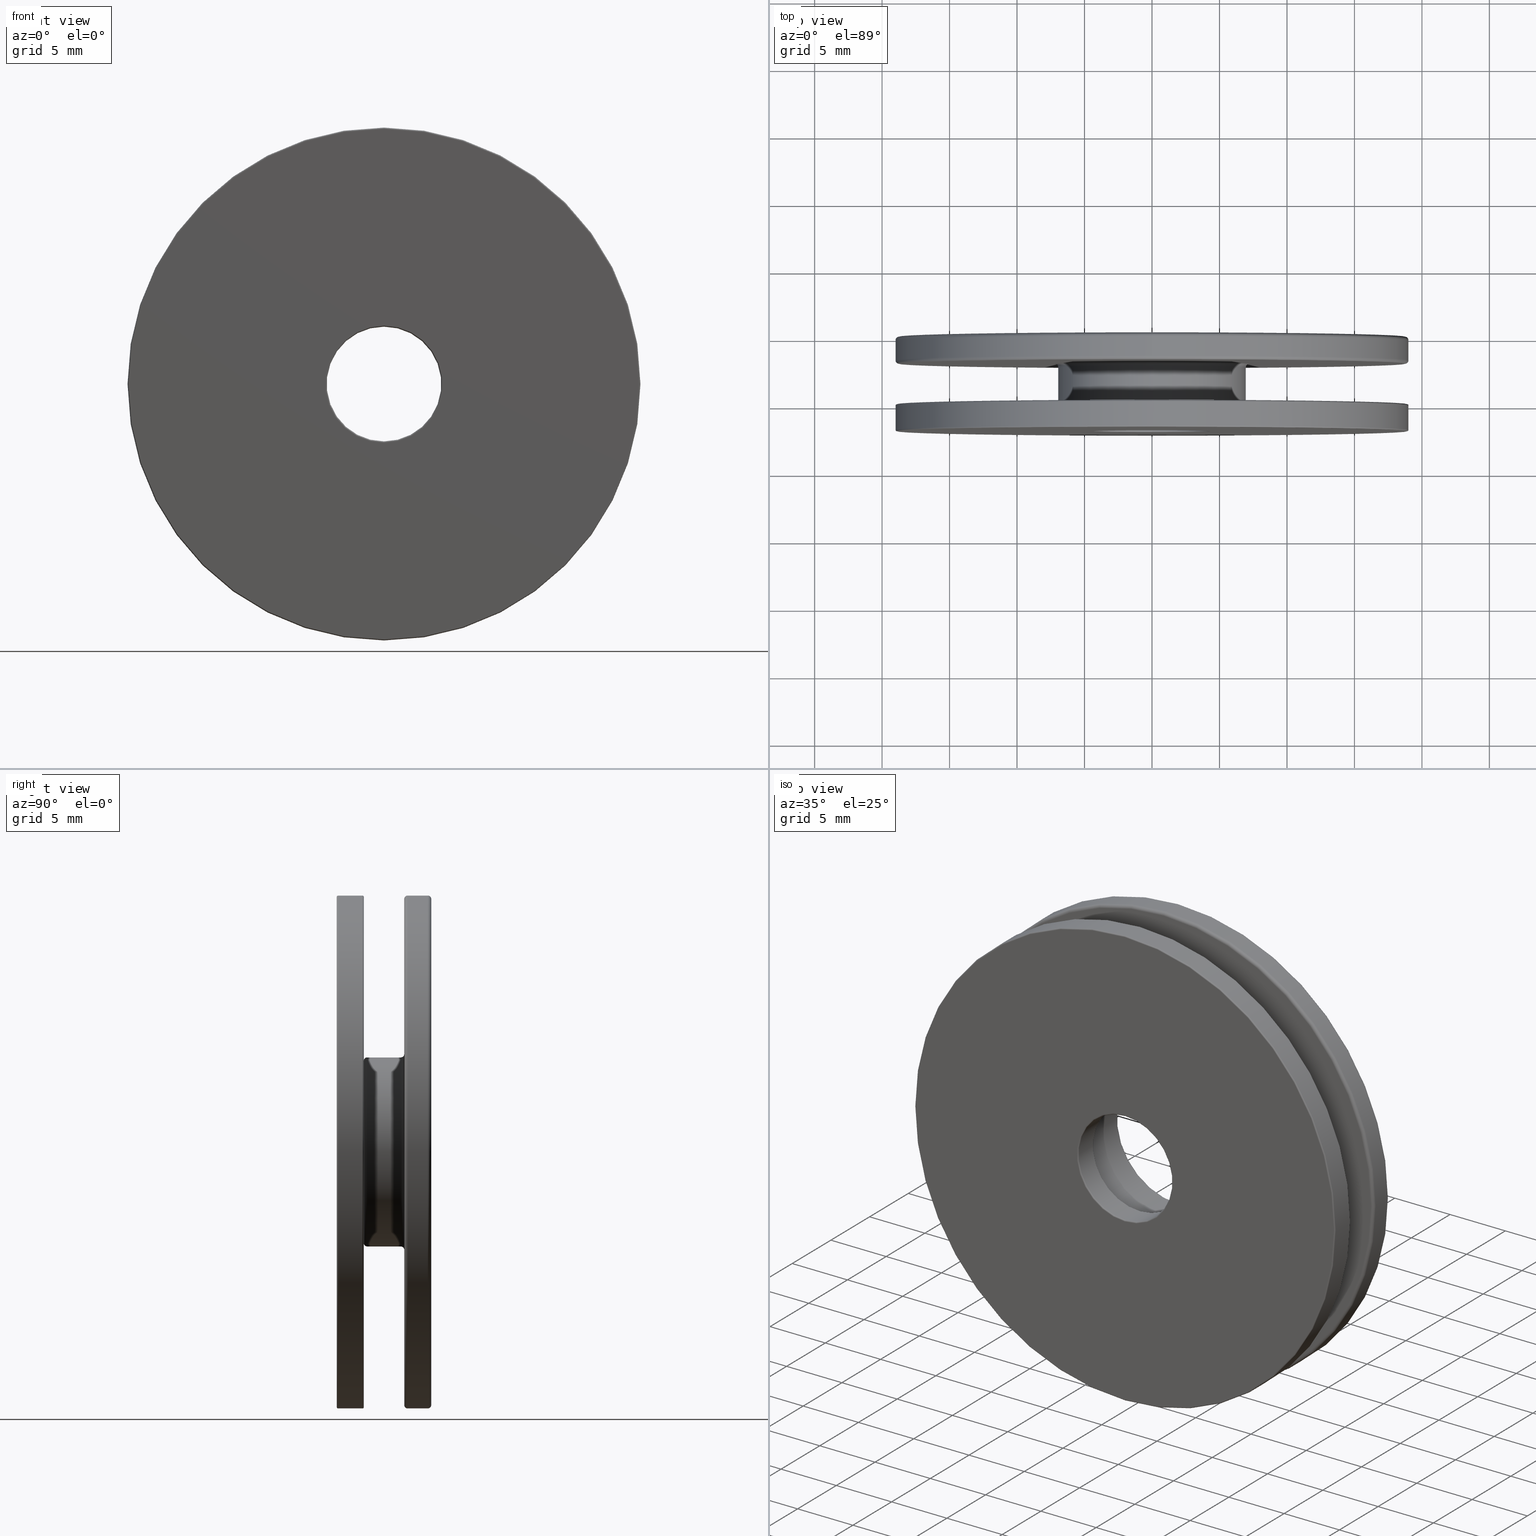
[diagram: canonical four-view strip — front | top / right | iso, engineering-drawing reading convention]
A machine part, canonical four-view strip (front | top / right | iso — engineering-drawing reading convention). The complete STEP part file that produces these views, byte-faithful:
ISO-10303-21;
HEADER;
FILE_DESCRIPTION (( 'STEP AP203' ),
    '1' );
FILE_NAME ('60230-GU.STEP',
    '2022-11-03T08:44:09',
    ( '' ),
    ( '' ),
    'SwSTEP 2.0',
    'SolidWorks 2018',
    '' );
FILE_SCHEMA (( 'CONFIG_CONTROL_DESIGN' ));
ENDSEC;

DATA;
#1 = CARTESIAN_POINT ( 'NONE',  ( 0.000000000000000000, 4.750000000000000000, 0.000000000000000000 ) ) ;
#2 = AXIS2_PLACEMENT_3D ( 'NONE', #224, #451, #333 ) ;
#3 = COORDINATED_UNIVERSAL_TIME_OFFSET ( 1, 0, .AHEAD. ) ;
#4 = DIRECTION ( 'NONE',  ( -0.000000000000000000, -1.000000000000000000, -0.000000000000000000 ) ) ;
#5 = CALENDAR_DATE ( 2022, 3, 11 ) ;
#6 = FACE_OUTER_BOUND ( 'NONE', #582, .T. ) ;
#7 = DIRECTION ( 'NONE',  ( 0.000000000000000000, 1.000000000000000000, 0.000000000000000000 ) ) ;
#8 = APPROVAL ( #378, 'UNSPECIFIED' ) ;
#9 = DIRECTION ( 'NONE',  ( 0.000000000000000000, 0.000000000000000000, 1.000000000000000000 ) ) ;
#10 = ADVANCED_FACE ( 'NONE', ( #263, #351 ), #678, .T. ) ;
#11 = DATE_AND_TIME ( #586, #401 ) ;
#12 = COORDINATED_UNIVERSAL_TIME_OFFSET ( 1, 0, .AHEAD. ) ;
#13 = APPROVAL_PERSON_ORGANIZATION ( #234, #353, #142 ) ;
#14 = DIRECTION ( 'NONE',  ( -0.000000000000000000, -1.000000000000000000, -0.000000000000000000 ) ) ;
#15 = CIRCLE ( 'NONE', #484, 4.250000000000000000 ) ;
#16 = ORIENTED_EDGE ( 'NONE', *, *, #312, .F. ) ;
#17 = AXIS2_PLACEMENT_3D ( 'NONE', #183, #639, #694 ) ;
#18 = CARTESIAN_POINT ( 'NONE',  ( 0.000000000000000000, 0.1000000000000002554, 0.000000000000000000 ) ) ;
#19 = PERSON ( 'UNSPECIFIED', 'UNSPECIFIED', 'UNSPECIFIED', ('UNSPECIFIED'), ('UNSPECIFIED'), ('UNSPECIFIED') ) ;
#20 = DIRECTION ( 'NONE',  ( 0.000000000000000000, 0.000000000000000000, -1.000000000000000000 ) ) ;
#21 = LOCAL_TIME ( 9, 44, 9.000000000000000000, #144 ) ;
#22 = EDGE_LOOP ( 'NONE', ( #223 ) ) ;
#23 = SHAPE_REPRESENTATION ( '60230-GU', ( #569, #244, #232 ), #268 ) ;
#24 = CC_DESIGN_PERSON_AND_ORGANIZATION_ASSIGNMENT ( #168, #663, ( #286 ) ) ;
#25 = PRODUCT_DEFINITION ( 'UNKNOWN', '', #611, #553 ) ;
#26 = APPLICATION_CONTEXT ( 'configuration controlled 3d designs of mechanical parts and assemblies' ) ;
#27 = AXIS2_PLACEMENT_3D ( 'NONE', #457, #399, #523 ) ;
#28 = LOCAL_TIME ( 9, 44, 9.000000000000000000, #292 ) ;
#29 = DATE_TIME_ROLE ( 'creation_date' ) ;
#30 = VERTEX_POINT ( 'NONE', #369 ) ;
#31 = FACE_BOUND ( 'NONE', #171, .T. ) ;
#32 = EDGE_LOOP ( 'NONE', ( #360 ) ) ;
#33 = CARTESIAN_POINT ( 'NONE',  ( 0.000000000000000000, 4.750000000000000000, 5.500000000000000000 ) ) ;
#34 = APPROVAL ( #432, 'UNSPECIFIED' ) ;
#35 = CARTESIAN_POINT ( 'NONE',  ( 0.000000000000000000, 4.750000000000000000, 6.999999999999999112 ) ) ;
#36 = CARTESIAN_POINT ( 'NONE',  ( 0.000000000000000000, 5.000000000000000000, 5.750000000000000000 ) ) ;
#37 = LOCAL_TIME ( 9, 44, 9.000000000000000000, #348 ) ;
#38 = EDGE_CURVE ( 'NONE', #170, #170, #718, .T. ) ;
#39 = SECURITY_CLASSIFICATION_LEVEL ( 'unclassified' ) ;
#40 = FACE_OUTER_BOUND ( 'NONE', #164, .T. ) ;
#41 = EDGE_LOOP ( 'NONE', ( #111 ) ) ;
#42 = SECURITY_CLASSIFICATION ( '', '', #506 ) ;
#43 = PERSON_AND_ORGANIZATION_ROLE ( 'creator' ) ;
#44 = CC_DESIGN_APPROVAL ( #397, ( #42 ) ) ;
#45 = APPROVAL_ROLE ( '' ) ;
#46 = APPROVAL_PERSON_ORGANIZATION ( #370, #65, #107 ) ;
#47 = DATE_TIME_ROLE ( 'classification_date' ) ;
#48 = APPROVAL_DATE_TIME ( #210, #439 ) ;
#49 = CIRCLE ( 'NONE', #512, 19.00000000000000000 ) ;
#50 = FACE_OUTER_BOUND ( 'NONE', #366, .T. ) ;
#51 = EDGE_LOOP ( 'NONE', ( #220 ) ) ;
#52 = DIRECTION ( 'NONE',  ( 0.000000000000000000, 1.000000000000000000, 0.000000000000000000 ) ) ;
#53 = ADVANCED_FACE ( 'NONE', ( #546, #710 ), #571, .T. ) ;
#54 = EDGE_CURVE ( 'NONE', #58, #58, #504, .T. ) ;
#55 = DIRECTION ( 'NONE',  ( 0.000000000000000000, 0.000000000000000000, -1.000000000000000000 ) ) ;
#56 = COORDINATED_UNIVERSAL_TIME_OFFSET ( 1, 0, .AHEAD. ) ;
#57 = CLOSED_SHELL ( 'NONE', ( #214, #556, #53, #280, #724, #267, #108, #343 ) ) ;
#58 = VERTEX_POINT ( 'NONE', #409 ) ;
#59 = EDGE_LOOP ( 'NONE', ( #89 ) ) ;
#60 = CC_DESIGN_DATE_AND_TIME_ASSIGNMENT ( #558, #157, ( #42 ) ) ;
#61 = CARTESIAN_POINT ( 'NONE',  ( 0.000000000000000000, 1.999999999999999112, 0.000000000000000000 ) ) ;
#62 = ADVANCED_FACE ( 'NONE', ( #456, #650 ), #403, .T. ) ;
#63 = DIRECTION ( 'NONE',  ( -0.000000000000000000, 1.000000000000000000, -0.000000000000000000 ) ) ;
#64 = PRODUCT_DEFINITION ( 'UNKNOWN', '', #609, #411 ) ;
#65 = APPROVAL ( #665, 'UNKNOWN' ) ;
#66 = PERSON_AND_ORGANIZATION ( #74, #567 ) ;
#67 = DIRECTION ( 'NONE',  ( 0.000000000000000000, 0.000000000000000000, 1.000000000000000000 ) ) ;
#68 = COORDINATED_UNIVERSAL_TIME_OFFSET ( 1, 0, .AHEAD. ) ;
#69 = FACE_OUTER_BOUND ( 'NONE', #331, .T. ) ;
#70 = ORIENTED_EDGE ( 'NONE', *, *, #264, .F. ) ;
#71 = EDGE_CURVE ( 'NONE', #358, #358, #630, .T. ) ;
#72 = DIRECTION ( 'NONE',  ( 0.000000000000000000, 0.000000000000000000, -1.000000000000000000 ) ) ;
#73 = DIRECTION ( 'NONE',  ( 0.000000000000000000, -1.000000000000000000, -0.000000000000000000 ) ) ;
#74 = PERSON ( 'NAUO-PER1', 'UNSPECIFIED', 'UNSPECIFIED', ('UNSPECIFIED'), ('UNSPECIFIED'), ('UNSPECIFIED') ) ;
#75 = CC_DESIGN_PERSON_AND_ORGANIZATION_ASSIGNMENT ( #672, #206, ( #346 ) ) ;
#76 = COORDINATED_UNIVERSAL_TIME_OFFSET ( 1, 0, .AHEAD. ) ;
#77 = PERSON_AND_ORGANIZATION ( #19, #534 ) ;
#78 = PERSON_AND_ORGANIZATION ( #19, #534 ) ;
#79 = ORIENTED_EDGE ( 'NONE', *, *, #500, .T. ) ;
#80 = FACE_OUTER_BOUND ( 'NONE', #300, .T. ) ;
#81 = EDGE_LOOP ( 'NONE', ( #16 ) ) ;
#82 = APPROVAL ( #554, 'UNKNOWN' ) ;
#83 = PRODUCT_DEFINITION_SHAPE ( 'NONE', 'NONE',  #322 ) ;
#84 = DIRECTION ( 'NONE',  ( 0.000000000000000000, 0.000000000000000000, 1.000000000000000000 ) ) ;
#85 = CC_DESIGN_APPROVAL ( #65, ( #646 ) ) ;
#86 = APPROVAL_DATE_TIME ( #422, #662 ) ;
#87 = VERTEX_POINT ( 'NONE', #478 ) ;
#88 = PERSON_AND_ORGANIZATION_ROLE ( 'design_owner' ) ;
#89 = ORIENTED_EDGE ( 'NONE', *, *, #522, .F. ) ;
#90 = CARTESIAN_POINT ( 'NONE',  ( 0.000000000000000000, 0.000000000000000000, 0.000000000000000000 ) ) ;
#91 = DIRECTION ( 'NONE',  ( 4.814824860968089633E-35, 3.577867169202164016E-17, -1.000000000000000000 ) ) ;
#92 = PERSON_AND_ORGANIZATION ( #19, #534 ) ;
#93 = EDGE_CURVE ( 'NONE', #514, #514, #693, .T. ) ;
#94 = DATE_AND_TIME ( #526, #390 ) ;
#95 =( NAMED_UNIT ( * ) SI_UNIT ( $, .STERADIAN. ) SOLID_ANGLE_UNIT ( ) );
#96 = PERSON_AND_ORGANIZATION ( #19, #534 ) ;
#97 = CIRCLE ( 'NONE', #599, 4.250000000000000000 ) ;
#98 = EDGE_LOOP ( 'NONE', ( #230 ) ) ;
#99 = DATE_TIME_ROLE ( 'classification_date' ) ;
#100 = APPROVAL_STATUS ( 'not_yet_approved' ) ;
#101 = AXIS2_PLACEMENT_3D ( 'NONE', #236, #73, #636 ) ;
#102 = APPROVAL ( #721, 'UNSPECIFIED' ) ;
#103 = APPROVAL_STATUS ( 'not_yet_approved' ) ;
#104 = FACE_OUTER_BOUND ( 'NONE', #675, .T. ) ;
#105 = TOROIDAL_SURFACE ( 'NONE', #141, 18.89999999999999858, 0.1000000000000000056 ) ;
#106 = UNCERTAINTY_MEASURE_WITH_UNIT (LENGTH_MEASURE( 1.000000000000000082E-05 ), #539, 'distance_accuracy_value', 'NONE');
#107 = APPROVAL_ROLE ( '' ) ;
#108 = ADVANCED_FACE ( 'NONE', ( #50, #319 ), #482, .T. ) ;
#109 = AXIS2_PLACEMENT_3D ( 'NONE', #278, #216, #336 ) ;
#110 = APPLICATION_CONTEXT ( 'configuration controlled 3d designs of mechanical parts and assemblies' ) ;
#111 = ORIENTED_EDGE ( 'NONE', *, *, #312, .T. ) ;
#112 = APPROVAL_PERSON_ORGANIZATION ( #251, #8, #557 ) ;
#113 = APPROVAL_DATE_TIME ( #281, #353 ) ;
#114 = CC_DESIGN_DATE_AND_TIME_ASSIGNMENT ( #297, #161, ( #64 ) ) ;
#115 = CIRCLE ( 'NONE', #559, 7.249999999999999112 ) ;
#116 = ORIENTED_EDGE ( 'NONE', *, *, #71, .T. ) ;
#117 = CARTESIAN_POINT ( 'NONE',  ( 0.000000000000000000, 0.2500000000000002220, 0.000000000000000000 ) ) ;
#118 = DIRECTION ( 'NONE',  ( 0.000000000000000000, 1.000000000000000000, 0.000000000000000000 ) ) ;
#119 = EDGE_CURVE ( 'NONE', #402, #402, #124, .T. ) ;
#120 = CC_DESIGN_APPROVAL ( #82, ( #307 ) ) ;
#121 = APPROVAL_PERSON_ORGANIZATION ( #66, #82, #209 ) ;
#122 = CIRCLE ( 'NONE', #368, 5.750000000000000000 ) ;
#123 = DIRECTION ( 'NONE',  ( 0.000000000000000000, 1.000000000000000000, 0.000000000000000000 ) ) ;
#124 = CIRCLE ( 'NONE', #109, 19.00000000000000000 ) ;
#125 = CC_DESIGN_DATE_AND_TIME_ASSIGNMENT ( #193, #99, ( #555 ) ) ;
#126 = CC_DESIGN_DATE_AND_TIME_ASSIGNMENT ( #219, #29, ( #322 ) ) ;
#127 = DATE_AND_TIME ( #479, #269 ) ;
#128 = CALENDAR_DATE ( 2022, 3, 11 ) ;
#129 = ORIENTED_EDGE ( 'NONE', *, *, #538, .F. ) ;
#130 = AXIS2_PLACEMENT_3D ( 'NONE', #728, #723, #329 ) ;
#131 = DIRECTION ( 'NONE',  ( 0.000000000000000000, 0.000000000000000000, -1.000000000000000000 ) ) ;
#132 = ORIENTED_EDGE ( 'NONE', *, *, #119, .F. ) ;
#133 = DIRECTION ( 'NONE',  ( 0.000000000000000000, 0.000000000000000000, -1.000000000000000000 ) ) ;
#134 = DIRECTION ( 'NONE',  ( 0.000000000000000000, 1.000000000000000000, 0.000000000000000000 ) ) ;
#135 = CONTEXT_DEPENDENT_SHAPE_REPRESENTATION ( #380, #494 ) ;
#136 = PERSON_AND_ORGANIZATION ( #19, #534 ) ;
#137 = PLANE ( 'NONE',  #373 ) ;
#138 = AXIS2_PLACEMENT_3D ( 'NONE', #469, #294, #133 ) ;
#139 = CARTESIAN_POINT ( 'NONE',  ( 0.000000000000000000, 0.1000000000000000056, 0.000000000000000000 ) ) ;
#140 = CARTESIAN_POINT ( 'NONE',  ( 0.000000000000000000, 0.2500000000000000000, -19.00000000000000000 ) ) ;
#141 = AXIS2_PLACEMENT_3D ( 'NONE', #580, #182, #288 ) ;
#142 = APPROVAL_ROLE ( '' ) ;
#143 = DATE_AND_TIME ( #543, #671 ) ;
#144 = COORDINATED_UNIVERSAL_TIME_OFFSET ( 1, 0, .AHEAD. ) ;
#145 = DIRECTION ( 'NONE',  ( 0.9999999999999997780, 5.551115123125782702E-17, -1.462285053785666958E-19 ) ) ;
#146 = ORIENTED_EDGE ( 'NONE', *, *, #612, .T. ) ;
#147 =( NAMED_UNIT ( * ) PLANE_ANGLE_UNIT ( ) SI_UNIT ( $, .RADIAN. ) );
#148 = DIRECTION ( 'NONE',  ( 1.000000000000000000, 0.000000000000000000, 0.000000000000000000 ) ) ;
#149 = AXIS2_PLACEMENT_3D ( 'NONE', #564, #332, #618 ) ;
#150 = LOCAL_TIME ( 9, 44, 9.000000000000000000, #68 ) ;
#151 = APPROVAL_ROLE ( '' ) ;
#152 = VERTEX_POINT ( 'NONE', #489 ) ;
#153 = FACE_OUTER_BOUND ( 'NONE', #196, .T. ) ;
#154 = APPLICATION_PROTOCOL_DEFINITION ( 'international standard', 'config_control_design', 1994, #110 ) ;
#155 = EDGE_CURVE ( 'NONE', #30, #30, #15, .T. ) ;
#156 = APPROVAL ( #443, 'UNSPECIFIED' ) ;
#157 = DATE_TIME_ROLE ( 'classification_date' ) ;
#158 = DIRECTION ( 'NONE',  ( 0.000000000000000000, -0.000000000000000000, 1.000000000000000000 ) ) ;
#159 = APPROVAL_DATE_TIME ( #648, #102 ) ;
#160 = CC_DESIGN_PERSON_AND_ORGANIZATION_ASSIGNMENT ( #655, #367, ( #322 ) ) ;
#161 = DATE_TIME_ROLE ( 'creation_date' ) ;
#162 = CIRCLE ( 'NONE', #166, 4.350000000000000533 ) ;
#163 = ADVANCED_FACE ( 'NONE', ( #180, #31 ), #386, .T. ) ;
#164 = EDGE_LOOP ( 'NONE', ( #396 ) ) ;
#165 = CARTESIAN_POINT ( 'NONE',  ( 0.000000000000000000, 0.000000000000000000, 0.000000000000000000 ) ) ;
#166 = AXIS2_PLACEMENT_3D ( 'NONE', #61, #14, #67 ) ;
#167 = DIRECTION ( 'NONE',  ( -0.000000000000000000, -1.000000000000000000, -0.000000000000000000 ) ) ;
#168 = PERSON_AND_ORGANIZATION ( #19, #534 ) ;
#169 = CARTESIAN_POINT ( 'NONE',  ( 0.000000000000000000, 5.000000000000000000, 0.000000000000000000 ) ) ;
#170 = VERTEX_POINT ( 'NONE', #428 ) ;
#171 = EDGE_LOOP ( 'NONE', ( #146 ) ) ;
#172 = DIRECTION ( 'NONE',  ( 0.000000000000000000, 0.000000000000000000, -1.000000000000000000 ) ) ;
#173 = ADVANCED_FACE ( 'NONE', ( #436, #463 ), #447, .T. ) ;
#174 = CARTESIAN_POINT ( 'NONE',  ( 0.000000000000000000, 0.1000000000000002554, 0.000000000000000000 ) ) ;
#175 = AXIS2_PLACEMENT_3D ( 'NONE', #531, #191, #643 ) ;
#176 = CALENDAR_DATE ( 2022, 3, 11 ) ;
#177 = FACE_OUTER_BOUND ( 'NONE', #537, .T. ) ;
#178 = AXIS2_PLACEMENT_3D ( 'NONE', #634, #576, #679 ) ;
#179 = DIRECTION ( 'NONE',  ( 0.000000000000000000, 0.000000000000000000, -1.000000000000000000 ) ) ;
#180 = FACE_OUTER_BOUND ( 'NONE', #419, .T. ) ;
#181 = EDGE_LOOP ( 'NONE', ( #384 ) ) ;
#182 = DIRECTION ( 'NONE',  ( 0.000000000000000000, 1.000000000000000000, 0.000000000000000000 ) ) ;
#183 = CARTESIAN_POINT ( 'NONE',  ( 0.000000000000000000, 4.750000000000000000, 0.000000000000000000 ) ) ;
#184 = DIRECTION ( 'NONE',  ( 0.000000000000000000, 1.000000000000000000, 0.000000000000000000 ) ) ;
#185 = APPROVAL_DATE_TIME ( #471, #34 ) ;
#186 = VERTEX_POINT ( 'NONE', #33 ) ;
#187 = DIRECTION ( 'NONE',  ( 0.000000000000000000, 0.000000000000000000, -1.000000000000000000 ) ) ;
#188 = EDGE_LOOP ( 'NONE', ( #339 ) ) ;
#189 = DIRECTION ( 'NONE',  ( -0.000000000000000000, -1.000000000000000000, -0.000000000000000000 ) ) ;
#190 = EDGE_CURVE ( 'NONE', #615, #615, #552, .T. ) ;
#191 = DIRECTION ( 'NONE',  ( 0.000000000000000000, 1.000000000000000000, 0.000000000000000000 ) ) ;
#192 = DATE_AND_TIME ( #577, #595 ) ;
#193 = DATE_AND_TIME ( #578, #37 ) ;
#194 = FACE_OUTER_BOUND ( 'NONE', #239, .T. ) ;
#195 = ORIENTED_EDGE ( 'NONE', *, *, #38, .T. ) ;
#196 = EDGE_LOOP ( 'NONE', ( #475 ) ) ;
#197 = PERSON_AND_ORGANIZATION_ROLE ( 'creator' ) ;
#198 = CARTESIAN_POINT ( 'NONE',  ( 0.000000000000000000, -7.000000000000000000, -3.507334620063777822E-16 ) ) ;
#199 = AXIS2_PLACEMENT_3D ( 'NONE', #625, #687, #283 ) ;
#200 = CC_DESIGN_DATE_AND_TIME_ASSIGNMENT ( #11, #660, ( #646 ) ) ;
#201 = PERSON_AND_ORGANIZATION ( #19, #534 ) ;
#202 = ORIENTED_EDGE ( 'NONE', *, *, #522, .T. ) ;
#203 = CARTESIAN_POINT ( 'NONE',  ( 0.000000000000000000, 0.000000000000000000, 0.000000000000000000 ) ) ;
#204 = FACE_OUTER_BOUND ( 'NONE', #272, .T. ) ;
#205 = MECHANICAL_CONTEXT ( 'NONE', #26, 'mechanical' ) ;
#206 = PERSON_AND_ORGANIZATION_ROLE ( 'design_owner' ) ;
#207 = AXIS2_PLACEMENT_3D ( 'NONE', #139, #535, #592 ) ;
#208 = CALENDAR_DATE ( 2022, 3, 11 ) ;
#209 = APPROVAL_ROLE ( '' ) ;
#210 = DATE_AND_TIME ( #176, #21 ) ;
#211 = TOROIDAL_SURFACE ( 'NONE', #207, 18.89999999999999858, 0.1000000000000000056 ) ;
#212 = CLOSED_SHELL ( 'NONE', ( #566, #341, #10, #449, #163, #445, #389, #573, #173, #673, #62, #505 ) ) ;
#213 = EDGE_CURVE ( 'NONE', #87, #87, #246, .T. ) ;
#214 = ADVANCED_FACE ( 'NONE', ( #153, #561 ), #293, .F. ) ;
#215 = PERSON_AND_ORGANIZATION_ROLE ( 'design_supplier' ) ;
#216 = DIRECTION ( 'NONE',  ( -0.000000000000000000, -1.000000000000000000, -0.000000000000000000 ) ) ;
#217 = APPROVAL_PERSON_ORGANIZATION ( #596, #102, #719 ) ;
#218 = AXIS2_PLACEMENT_3D ( 'NONE', #690, #645, #84 ) ;
#219 = DATE_AND_TIME ( #726, #605 ) ;
#220 = ORIENTED_EDGE ( 'NONE', *, *, #213, .T. ) ;
#221 = TOROIDAL_SURFACE ( 'NONE', #330, 18.75000000000000000, 0.2500000000000000000 ) ;
#222 = DIRECTION ( 'NONE',  ( 0.000000000000000000, 0.000000000000000000, 1.000000000000000000 ) ) ;
#223 = ORIENTED_EDGE ( 'NONE', *, *, #54, .F. ) ;
#224 = CARTESIAN_POINT ( 'NONE',  ( 0.000000000000000000, 1.899999999999999023, 0.000000000000000000 ) ) ;
#225 = CC_DESIGN_DATE_AND_TIME_ASSIGNMENT ( #619, #320, ( #25 ) ) ;
#226 = CARTESIAN_POINT ( 'NONE',  ( 0.000000000000000000, 0.000000000000000000, 0.000000000000000000 ) ) ;
#227 = AXIS2_PLACEMENT_3D ( 'NONE', #394, #398, #729 ) ;
#228 = PRODUCT_DEFINITION_SHAPE ( 'NONE', 'NONE',  #25 ) ;
#229 = VERTEX_POINT ( 'NONE', #651 ) ;
#230 = ORIENTED_EDGE ( 'NONE', *, *, #235, .T. ) ;
#231 = DIRECTION ( 'NONE',  ( -0.000000000000000000, -1.000000000000000000, -0.000000000000000000 ) ) ;
#232 = AXIS2_PLACEMENT_3D ( 'NONE', #198, #545, #647 ) ;
#233 = LOCAL_TIME ( 9, 44, 9.000000000000000000, #12 ) ;
#234 = PERSON_AND_ORGANIZATION ( #19, #534 ) ;
#235 = EDGE_CURVE ( 'NONE', #229, #229, #162, .T. ) ;
#236 = CARTESIAN_POINT ( 'NONE',  ( 0.000000000000000000, 0.000000000000000000, 0.000000000000000000 ) ) ;
#237 = EDGE_LOOP ( 'NONE', ( #295 ) ) ;
#238 = CIRCLE ( 'NONE', #669, 5.500000000000000000 ) ;
#239 = EDGE_LOOP ( 'NONE', ( #483 ) ) ;
#240 = CC_DESIGN_APPROVAL ( #662, ( #555 ) ) ;
#241 = DIRECTION ( 'NONE',  ( 0.000000000000000000, 0.000000000000000000, -1.000000000000000000 ) ) ;
#242 = DIRECTION ( 'NONE',  ( 0.000000000000000000, 0.000000000000000000, 1.000000000000000000 ) ) ;
#243 = COORDINATED_UNIVERSAL_TIME_OFFSET ( 1, 0, .AHEAD. ) ;
#244 = AXIS2_PLACEMENT_3D ( 'NONE', #485, #91, #145 ) ;
#245 = DIRECTION ( 'NONE',  ( 0.000000000000000000, 0.000000000000000000, 1.000000000000000000 ) ) ;
#246 = CIRCLE ( 'NONE', #383, 18.89999999999999858 ) ;
#247 =( LENGTH_UNIT ( ) NAMED_UNIT ( * ) SI_UNIT ( .MILLI., .METRE. ) );
#248 = AXIS2_PLACEMENT_3D ( 'NONE', #174, #342, #72 ) ;
#249 =( NAMED_UNIT ( * ) PLANE_ANGLE_UNIT ( ) SI_UNIT ( $, .RADIAN. ) );
#250 = LOCAL_TIME ( 9, 44, 9.000000000000000000, #335 ) ;
#251 = PERSON_AND_ORGANIZATION ( #19, #534 ) ;
#252 =( LENGTH_UNIT ( ) NAMED_UNIT ( * ) SI_UNIT ( .MILLI., .METRE. ) );
#253 = EDGE_LOOP ( 'NONE', ( #202 ) ) ;
#254 = EDGE_LOOP ( 'NONE', ( #70 ) ) ;
#255 = PRODUCT_DEFINITION_FORMATION_WITH_SPECIFIED_SOURCE ( 'ANY', '', #635, .NOT_KNOWN. ) ;
#256 = APPLICATION_CONTEXT ( 'configuration controlled 3d designs of mechanical parts and assemblies' ) ;
#257 = DATE_TIME_ROLE ( 'classification_date' ) ;
#258 = APPLICATION_PROTOCOL_DEFINITION ( 'international standard', 'config_control_design', 1994, #548 ) ;
#259 = SHAPE_REPRESENTATION ( '60230-GU Teil2_60230-GU Teil2 Keyshot', ( #593 ), #287 ) ;
#260 = CALENDAR_DATE ( 2022, 3, 11 ) ;
#261 = APPROVAL_ROLE ( '' ) ;
#262 = VERTEX_POINT ( 'NONE', #303 ) ;
#263 = FACE_OUTER_BOUND ( 'NONE', #188, .T. ) ;
#264 = EDGE_CURVE ( 'NONE', #641, #641, #115, .T. ) ;
#265 = SECURITY_CLASSIFICATION_LEVEL ( 'unclassified' ) ;
#266 = CARTESIAN_POINT ( 'NONE',  ( 0.000000000000000000, 0.000000000000000000, 0.000000000000000000 ) ) ;
#267 = ADVANCED_FACE ( 'NONE', ( #6, #328 ), #105, .T. ) ;
#268 =( GEOMETRIC_REPRESENTATION_CONTEXT ( 3 ) GLOBAL_UNCERTAINTY_ASSIGNED_CONTEXT ( ( #466 ) ) GLOBAL_UNIT_ASSIGNED_CONTEXT ( ( #252, #249, #649 ) ) REPRESENTATION_CONTEXT ( 'NONE', 'WORKASPACE' ) );
#269 = LOCAL_TIME ( 9, 44, 9.000000000000000000, #56 ) ;
#270 = DIRECTION ( 'NONE',  ( -0.000000000000000000, -1.000000000000000000, -0.000000000000000000 ) ) ;
#271 = APPROVAL_DATE_TIME ( #527, #413 ) ;
#272 = EDGE_LOOP ( 'NONE', ( #667 ) ) ;
#273 = ORIENTED_EDGE ( 'NONE', *, *, #119, .T. ) ;
#274 = DIRECTION ( 'NONE',  ( 0.000000000000000000, 0.000000000000000000, 1.000000000000000000 ) ) ;
#275 = ADVANCED_BREP_SHAPE_REPRESENTATION ( '', ( #498, #593 ), #423 ) ;
#276 = AXIS2_PLACEMENT_3D ( 'NONE', #165, #167, #507 ) ;
#277 = CC_DESIGN_PERSON_AND_ORGANIZATION_ASSIGNMENT ( #201, #43, ( #611 ) ) ;
#278 = CARTESIAN_POINT ( 'NONE',  ( 0.000000000000000000, 1.749999999999999112, 0.000000000000000000 ) ) ;
#279 = CARTESIAN_POINT ( 'NONE',  ( 0.000000000000000000, 1.899999999999999023, 0.000000000000000000 ) ) ;
#280 = ADVANCED_FACE ( 'NONE', ( #701, #309 ), #623, .T. ) ;
#281 = DATE_AND_TIME ( #128, #433 ) ;
#282 = FACE_OUTER_BOUND ( 'NONE', #253, .T. ) ;
#283 = DIRECTION ( 'NONE',  ( 0.000000000000000000, -0.000000000000000000, 1.000000000000000000 ) ) ;
#284 = CIRCLE ( 'NONE', #178, 5.500000000000000000 ) ;
#285 = DIRECTION ( 'NONE',  ( 0.000000000000000000, 0.000000000000000000, -1.000000000000000000 ) ) ;
#286 = PRODUCT ( '60230-GU Teil2_60230-GU Teil2 Keyshot', '60230-GU Teil2_60230-GU Teil2 Keyshot', '', ( #205 ) ) ;
#287 =( GEOMETRIC_REPRESENTATION_CONTEXT ( 3 ) GLOBAL_UNCERTAINTY_ASSIGNED_CONTEXT ( ( #703 ) ) GLOBAL_UNIT_ASSIGNED_CONTEXT ( ( #247, #147, #95 ) ) REPRESENTATION_CONTEXT ( 'NONE', 'WORKASPACE' ) );
#288 = DIRECTION ( 'NONE',  ( 0.000000000000000000, 0.000000000000000000, 1.000000000000000000 ) ) ;
#289 = ITEM_DEFINED_TRANSFORMATION ( 'NONE', 'NONE', #244,  #593 ) ;
#290 = AXIS2_PLACEMENT_3D ( 'NONE', #345, #63, #9 ) ;
#291 = CARTESIAN_POINT ( 'NONE',  ( 0.000000000000000000, 1.999999999999999112, 0.000000000000000000 ) ) ;
#292 = COORDINATED_UNIVERSAL_TIME_OFFSET ( 1, 0, .AHEAD. ) ;
#293 = CYLINDRICAL_SURFACE ( 'NONE', #27, 4.250000000000000000 ) ;
#294 = DIRECTION ( 'NONE',  ( 0.000000000000000000, 1.000000000000000000, 0.000000000000000000 ) ) ;
#295 = ORIENTED_EDGE ( 'NONE', *, *, #458, .T. ) ;
#296 = CC_DESIGN_APPROVAL ( #353, ( #255 ) ) ;
#297 = DATE_AND_TIME ( #725, #28 ) ;
#298 = CARTESIAN_POINT ( 'NONE',  ( 0.000000000000000000, 5.000000000000000000, 6.749999999999999112 ) ) ;
#299 = FACE_OUTER_BOUND ( 'NONE', #392, .T. ) ;
#300 = EDGE_LOOP ( 'NONE', ( #515 ) ) ;
#301 = CARTESIAN_POINT ( 'NONE',  ( 0.000000000000000000, 0.2500000000000000000, 0.000000000000000000 ) ) ;
#302 = AXIS2_PLACEMENT_3D ( 'NONE', #117, #517, #510 ) ;
#303 = CARTESIAN_POINT ( 'NONE',  ( 0.000000000000000000, 0.000000000000000000, -4.350000000000000533 ) ) ;
#304 = MECHANICAL_CONTEXT ( 'NONE', #421, 'mechanical' ) ;
#305 = COORDINATED_UNIVERSAL_TIME_OFFSET ( 1, 0, .AHEAD. ) ;
#306 = CYLINDRICAL_SURFACE ( 'NONE', #708, 6.999999999999999112 ) ;
#307 = SECURITY_CLASSIFICATION ( '', '', #497 ) ;
#308 = CARTESIAN_POINT ( 'NONE',  ( 0.000000000000000000, 0.000000000000000000, -5.750000000000000000 ) ) ;
#309 = FACE_BOUND ( 'NONE', #98, .T. ) ;
#310 = EDGE_LOOP ( 'NONE', ( #656 ) ) ;
#311 = APPLICATION_PROTOCOL_DEFINITION ( 'international standard', 'config_control_design', 1994, #712 ) ;
#312 = EDGE_CURVE ( 'NONE', #186, #186, #284, .T. ) ;
#313 = CARTESIAN_POINT ( 'NONE',  ( 0.000000000000000000, 0.2500000000000002220, -5.500000000000000000 ) ) ;
#314 = CC_DESIGN_SECURITY_CLASSIFICATION ( #555, ( #609 ) ) ;
#315 = CALENDAR_DATE ( 2022, 3, 11 ) ;
#316 = MECHANICAL_CONTEXT ( 'NONE', #256, 'mechanical' ) ;
#317 = SHAPE_REPRESENTATION_RELATIONSHIP ( 'NONE' , 'NONE' ,  #259, #670 ) ;
#318 = VERTEX_POINT ( 'NONE', #313 ) ;
#319 = FACE_OUTER_BOUND ( 'NONE', #372, .T. ) ;
#320 = DATE_TIME_ROLE ( 'creation_date' ) ;
#321 = PERSON_AND_ORGANIZATION_ROLE ( 'creator' ) ;
#322 = PRODUCT_DEFINITION ( 'UNKNOWN', '', #255, #565 ) ;
#323 = PERSON_AND_ORGANIZATION_ROLE ( 'creator' ) ;
#324 = DIRECTION ( 'NONE',  ( 0.000000000000000000, 1.000000000000000000, 0.000000000000000000 ) ) ;
#325 = CONTEXT_DEPENDENT_SHAPE_REPRESENTATION ( #385, #696 ) ;
#326 = PERSON_AND_ORGANIZATION ( #19, #534 ) ;
#327 = CYLINDRICAL_SURFACE ( 'NONE', #446, 19.00000000000000000 ) ;
#328 = FACE_OUTER_BOUND ( 'NONE', #181, .T. ) ;
#329 = DIRECTION ( 'NONE',  ( 0.000000000000000000, 0.000000000000000000, 1.000000000000000000 ) ) ;
#330 = AXIS2_PLACEMENT_3D ( 'NONE', #352, #688, #340 ) ;
#331 = EDGE_LOOP ( 'NONE', ( #79 ) ) ;
#332 = DIRECTION ( 'NONE',  ( 0.000000000000000000, 1.000000000000000000, 0.000000000000000000 ) ) ;
#333 = DIRECTION ( 'NONE',  ( 0.000000000000000000, 0.000000000000000000, 1.000000000000000000 ) ) ;
#334 = CC_DESIGN_APPROVAL ( #34, ( #508 ) ) ;
#335 = COORDINATED_UNIVERSAL_TIME_OFFSET ( 1, 0, .AHEAD. ) ;
#336 = DIRECTION ( 'NONE',  ( 0.000000000000000000, 0.000000000000000000, 1.000000000000000000 ) ) ;
#337 = ORIENTED_EDGE ( 'NONE', *, *, #93, .T. ) ;
#338 = SHAPE_DEFINITION_REPRESENTATION ( #83, #23 ) ;
#339 = ORIENTED_EDGE ( 'NONE', *, *, #54, .T. ) ;
#340 = DIRECTION ( 'NONE',  ( 0.000000000000000000, 0.000000000000000000, -1.000000000000000000 ) ) ;
#341 = ADVANCED_FACE ( 'NONE', ( #598, #727 ), #327, .T. ) ;
#342 = DIRECTION ( 'NONE',  ( -0.000000000000000000, -1.000000000000000000, -0.000000000000000000 ) ) ;
#343 = ADVANCED_FACE ( 'NONE', ( #590, #204 ), #393, .T. ) ;
#344 = AXIS2_PLACEMENT_3D ( 'NONE', #631, #460, #350 ) ;
#345 = CARTESIAN_POINT ( 'NONE',  ( 0.000000000000000000, -5.000000000000000000, 0.000000000000000000 ) ) ;
#346 = PRODUCT ( '60230-GU Teil1_60230-GU Teil1 Keyshot', '60230-GU Teil1_60230-GU Teil1 Keyshot', '', ( #316 ) ) ;
#347 = LOCAL_TIME ( 9, 44, 9.000000000000000000, #524 ) ;
#348 = COORDINATED_UNIVERSAL_TIME_OFFSET ( 1, 0, .AHEAD. ) ;
#349 = FACE_OUTER_BOUND ( 'NONE', #41, .T. ) ;
#350 = DIRECTION ( 'NONE',  ( 0.000000000000000000, 0.000000000000000000, -1.000000000000000000 ) ) ;
#351 = FACE_BOUND ( 'NONE', #677, .T. ) ;
#352 = CARTESIAN_POINT ( 'NONE',  ( 0.000000000000000000, 0.2500000000000000000, 0.000000000000000000 ) ) ;
#353 = APPROVAL ( #481, 'UNSPECIFIED' ) ;
#354 = PERSON_AND_ORGANIZATION ( #19, #534 ) ;
#355 = PERSON_AND_ORGANIZATION ( #19, #534 ) ;
#356 = CC_DESIGN_PERSON_AND_ORGANIZATION_ASSIGNMENT ( #326, #715, ( #25 ) ) ;
#357 = ORIENTED_EDGE ( 'NONE', *, *, #538, .T. ) ;
#358 = VERTEX_POINT ( 'NONE', #705 ) ;
#359 = DIRECTION ( 'NONE',  ( 0.000000000000000000, 1.000000000000000000, 0.000000000000000000 ) ) ;
#360 = ORIENTED_EDGE ( 'NONE', *, *, #93, .F. ) ;
#361 = DIRECTION ( 'NONE',  ( 0.000000000000000000, 0.000000000000000000, 1.000000000000000000 ) ) ;
#362 = LOCAL_TIME ( 9, 44, 9.000000000000000000, #689 ) ;
#363 = CALENDAR_DATE ( 2022, 3, 11 ) ;
#364 = MANIFOLD_SOLID_BREP ( 'Verrundung2', #57 ) ;
#365 = FACE_OUTER_BOUND ( 'NONE', #695, .T. ) ;
#366 = EDGE_LOOP ( 'NONE', ( #640 ) ) ;
#367 = PERSON_AND_ORGANIZATION_ROLE ( 'creator' ) ;
#368 = AXIS2_PLACEMENT_3D ( 'NONE', #521, #7, #285 ) ;
#369 = CARTESIAN_POINT ( 'NONE',  ( 0.000000000000000000, 1.899999999999999023, 4.250000000000000000 ) ) ;
#370 = PERSON_AND_ORGANIZATION ( #568, #681 ) ;
#371 = PERSON_AND_ORGANIZATION ( #19, #534 ) ;
#372 = EDGE_LOOP ( 'NONE', ( #528 ) ) ;
#373 = AXIS2_PLACEMENT_3D ( 'NONE', #697, #414, #241 ) ;
#374 = DIRECTION ( 'NONE',  ( 0.000000000000000000, 0.000000000000000000, 1.000000000000000000 ) ) ;
#375 = FACE_BOUND ( 'NONE', #563, .T. ) ;
#376 = SECURITY_CLASSIFICATION_LEVEL ( 'unclassified' ) ;
#377 = AXIS2_PLACEMENT_3D ( 'NONE', #203, #709, #486 ) ;
#378 = APPROVAL_STATUS ( 'not_yet_approved' ) ;
#379 = PRODUCT_RELATED_PRODUCT_CATEGORY ( 'detail', '', ( #286 ) ) ;
#380 =( REPRESENTATION_RELATIONSHIP ('NONE','NONE', #23, #437 ) REPRESENTATION_RELATIONSHIP_WITH_TRANSFORMATION ( #289 )SHAPE_REPRESENTATION_RELATIONSHIP( ) );
#381 = CALENDAR_DATE ( 2022, 3, 11 ) ;
#382 = FACE_OUTER_BOUND ( 'NONE', #513, .T. ) ;
#383 = AXIS2_PLACEMENT_3D ( 'NONE', #464, #123, #405 ) ;
#384 = ORIENTED_EDGE ( 'NONE', *, *, #38, .F. ) ;
#385 =( REPRESENTATION_RELATIONSHIP ('NONE','NONE', #23, #259 ) REPRESENTATION_RELATIONSHIP_WITH_TRANSFORMATION ( #442 )SHAPE_REPRESENTATION_RELATIONSHIP( ) );
#386 = PLANE ( 'NONE',  #429 ) ;
#387 = PERSON_AND_ORGANIZATION_ROLE ( 'classification_officer' ) ;
#388 = AXIS2_PLACEMENT_3D ( 'NONE', #476, #359, #361 ) ;
#389 = ADVANCED_FACE ( 'NONE', ( #40, #607 ), #221, .T. ) ;
#390 = LOCAL_TIME ( 9, 44, 9.000000000000000000, #691 ) ;
#391 = COORDINATED_UNIVERSAL_TIME_OFFSET ( 1, 0, .AHEAD. ) ;
#392 = EDGE_LOOP ( 'NONE', ( #116 ) ) ;
#393 = TOROIDAL_SURFACE ( 'NONE', #248, 4.350000000000000533, 0.1000000000000000056 ) ;
#394 = CARTESIAN_POINT ( 'NONE',  ( 19.00000000000000000, 1.999999999999999112, 0.000000000000000000 ) ) ;
#395 = AXIS2_PLACEMENT_3D ( 'NONE', #266, #270, #55 ) ;
#396 = ORIENTED_EDGE ( 'NONE', *, *, #658, .F. ) ;
#397 = APPROVAL ( #100, 'UNSPECIFIED' ) ;
#398 = DIRECTION ( 'NONE',  ( 0.000000000000000000, 1.000000000000000000, 0.000000000000000000 ) ) ;
#399 = DIRECTION ( 'NONE',  ( -0.000000000000000000, 1.000000000000000000, -0.000000000000000000 ) ) ;
#400 = CC_DESIGN_APPROVAL ( #8, ( #611 ) ) ;
#401 = LOCAL_TIME ( 9, 44, 9.000000000000000000, #3 ) ;
#402 = VERTEX_POINT ( 'NONE', #597 ) ;
#403 = TOROIDAL_SURFACE ( 'NONE', #302, 5.750000000000000000, 0.2500000000000000000 ) ;
#404 = CC_DESIGN_SECURITY_CLASSIFICATION ( #508, ( #255 ) ) ;
#405 = DIRECTION ( 'NONE',  ( 0.000000000000000000, 0.000000000000000000, 1.000000000000000000 ) ) ;
#406 = DIRECTION ( 'NONE',  ( 0.000000000000000000, 0.000000000000000000, 1.000000000000000000 ) ) ;
#407 = CALENDAR_DATE ( 2022, 3, 11 ) ;
#408 = SHAPE_DEFINITION_REPRESENTATION ( #613, #259 ) ;
#409 = CARTESIAN_POINT ( 'NONE',  ( 0.000000000000000000, 1.999999999999999112, 18.75000000000000000 ) ) ;
#410 = ORIENTED_EDGE ( 'NONE', *, *, #264, .T. ) ;
#411 = DESIGN_CONTEXT ( 'detailed design', #110, 'design' ) ;
#412 = ORIENTED_EDGE ( 'NONE', *, *, #633, .F. ) ;
#413 = APPROVAL ( #540, 'UNSPECIFIED' ) ;
#414 = DIRECTION ( 'NONE',  ( 0.000000000000000000, -1.000000000000000000, -0.000000000000000000 ) ) ;
#415 = CC_DESIGN_PERSON_AND_ORGANIZATION_ASSIGNMENT ( #604, #321, ( #64 ) ) ;
#416 = APPROVAL_PERSON_ORGANIZATION ( #92, #397, #261 ) ;
#417 = TOROIDAL_SURFACE ( 'NONE', #218, 5.750000000000000000, 0.2500000000000000000 ) ;
#418 = DIRECTION ( 'NONE',  ( 0.000000000000000000, 1.000000000000000000, 0.000000000000000000 ) ) ;
#419 = EDGE_LOOP ( 'NONE', ( #337 ) ) ;
#420 = EDGE_CURVE ( 'NONE', #666, #666, #122, .T. ) ;
#421 = APPLICATION_CONTEXT ( 'configuration controlled 3d designs of mechanical parts and assemblies' ) ;
#422 = DATE_AND_TIME ( #363, #233 ) ;
#423 =( GEOMETRIC_REPRESENTATION_CONTEXT ( 3 ) GLOBAL_UNCERTAINTY_ASSIGNED_CONTEXT ( ( #106 ) ) GLOBAL_UNIT_ASSIGNED_CONTEXT ( ( #539, #594, #702 ) ) REPRESENTATION_CONTEXT ( 'NONE', 'WORKASPACE' ) );
#424 = CARTESIAN_POINT ( 'NONE',  ( 0.000000000000000000, 0.000000000000000000, 0.000000000000000000 ) ) ;
#425 = LOCAL_TIME ( 9, 44, 9.000000000000000000, #692 ) ;
#426 = ORIENTED_EDGE ( 'NONE', *, *, #190, .F. ) ;
#427 = EDGE_LOOP ( 'NONE', ( #711 ) ) ;
#428 = CARTESIAN_POINT ( 'NONE',  ( 0.000000000000000000, 1.899999999999999023, 19.00000000000000000 ) ) ;
#429 = AXIS2_PLACEMENT_3D ( 'NONE', #169, #52, #158 ) ;
#430 = CARTESIAN_POINT ( 'NONE',  ( 0.000000000000000000, 2.249999999999999556, 6.999999999999999112 ) ) ;
#431 = CC_DESIGN_SECURITY_CLASSIFICATION ( #42, ( #611 ) ) ;
#432 = APPROVAL_STATUS ( 'not_yet_approved' ) ;
#433 = LOCAL_TIME ( 9, 44, 9.000000000000000000, #472 ) ;
#434 = PERSON_AND_ORGANIZATION_ROLE ( 'design_supplier' ) ;
#435 = TOROIDAL_SURFACE ( 'NONE', #468, 7.249999999999999112, 0.2500000000000000000 ) ;
#436 = FACE_OUTER_BOUND ( 'NONE', #32, .T. ) ;
#437 = SHAPE_REPRESENTATION ( '60230-GU Teil1_60230-GU Teil1 Keyshot', ( #593 ), #423 ) ;
#438 = PERSON_AND_ORGANIZATION_ROLE ( 'classification_officer' ) ;
#439 = APPROVAL ( #606, 'UNSPECIFIED' ) ;
#440 = APPROVAL_ROLE ( '' ) ;
#441 = CARTESIAN_POINT ( 'NONE',  ( 0.000000000000000000, 5.000000000000000000, 0.000000000000000000 ) ) ;
#442 = ITEM_DEFINED_TRANSFORMATION ( 'NONE', 'NONE', #232,  #593 ) ;
#443 = APPROVAL_STATUS ( 'not_yet_approved' ) ;
#444 = APPROVAL_PERSON_ORGANIZATION ( #136, #34, #151 ) ;
#445 = ADVANCED_FACE ( 'NONE', ( #349, #69 ), #462, .F. ) ;
#446 = AXIS2_PLACEMENT_3D ( 'NONE', #226, #231, #172 ) ;
#447 = TOROIDAL_SURFACE ( 'NONE', #722, 6.749999999999999112, 0.2500000000000000000 ) ;
#448 = EDGE_LOOP ( 'NONE', ( #426 ) ) ;
#449 = ADVANCED_FACE ( 'NONE', ( #282, #365 ), #306, .T. ) ;
#450 = CC_DESIGN_PERSON_AND_ORGANIZATION_ASSIGNMENT ( #511, #197, ( #255 ) ) ;
#451 = DIRECTION ( 'NONE',  ( -0.000000000000000000, -1.000000000000000000, -0.000000000000000000 ) ) ;
#452 = PERSON_AND_ORGANIZATION ( #19, #534 ) ;
#453 = LOCAL_TIME ( 9, 44, 9.000000000000000000, #674 ) ;
#454 = CIRCLE ( 'NONE', #175, 6.999999999999999112 ) ;
#455 = CC_DESIGN_PERSON_AND_ORGANIZATION_ASSIGNMENT ( #452, #713, ( #609 ) ) ;
#456 = FACE_OUTER_BOUND ( 'NONE', #642, .T. ) ;
#457 = CARTESIAN_POINT ( 'NONE',  ( 0.000000000000000000, -5.000000000000000000, 0.000000000000000000 ) ) ;
#458 = EDGE_CURVE ( 'NONE', #152, #152, #97, .T. ) ;
#459 = APPROVAL_DATE_TIME ( #143, #82 ) ;
#460 = DIRECTION ( 'NONE',  ( -0.000000000000000000, -1.000000000000000000, -0.000000000000000000 ) ) ;
#461 = COORDINATED_UNIVERSAL_TIME_OFFSET ( 1, 0, .AHEAD. ) ;
#462 = CYLINDRICAL_SURFACE ( 'NONE', #290, 5.500000000000000000 ) ;
#463 = FACE_OUTER_BOUND ( 'NONE', #59, .T. ) ;
#464 = CARTESIAN_POINT ( 'NONE',  ( 0.000000000000000000, 1.999999999999999112, 0.000000000000000000 ) ) ;
#465 = ORIENTED_EDGE ( 'NONE', *, *, #71, .F. ) ;
#466 = UNCERTAINTY_MEASURE_WITH_UNIT (LENGTH_MEASURE( 1.000000000000000082E-05 ), #252, 'distance_accuracy_value', 'NONE');
#467 = PLANE ( 'NONE',  #101 ) ;
#468 = AXIS2_PLACEMENT_3D ( 'NONE', #589, #184, #245 ) ;
#469 = CARTESIAN_POINT ( 'NONE',  ( 0.000000000000000000, 0.000000000000000000, 0.000000000000000000 ) ) ;
#470 = CC_DESIGN_SECURITY_CLASSIFICATION ( #307, ( #730 ) ) ;
#471 = DATE_AND_TIME ( #627, #150 ) ;
#472 = COORDINATED_UNIVERSAL_TIME_OFFSET ( 1, 0, .AHEAD. ) ;
#473 = CARTESIAN_POINT ( 'NONE',  ( 0.000000000000000000, 5.000000000000000000, 0.000000000000000000 ) ) ;
#474 = VERTEX_POINT ( 'NONE', #430 ) ;
#475 = ORIENTED_EDGE ( 'NONE', *, *, #155, .T. ) ;
#476 = CARTESIAN_POINT ( 'NONE',  ( 0.000000000000000000, 1.749999999999999112, 0.000000000000000000 ) ) ;
#477 = CC_DESIGN_PERSON_AND_ORGANIZATION_ASSIGNMENT ( #78, #88, ( #635 ) ) ;
#478 = CARTESIAN_POINT ( 'NONE',  ( 0.000000000000000000, 1.999999999999999112, 18.89999999999999858 ) ) ;
#479 = CALENDAR_DATE ( 2022, 3, 11 ) ;
#480 = CIRCLE ( 'NONE', #532, 19.00000000000000000 ) ;
#481 = APPROVAL_STATUS ( 'not_yet_approved' ) ;
#482 = TOROIDAL_SURFACE ( 'NONE', #149, 4.350000000000000533, 0.1000000000000000056 ) ;
#483 = ORIENTED_EDGE ( 'NONE', *, *, #190, .T. ) ;
#484 = AXIS2_PLACEMENT_3D ( 'NONE', #279, #324, #274 ) ;
#485 = CARTESIAN_POINT ( 'NONE',  ( 0.000000000000000000, 0.000000000000000000, 0.000000000000000000 ) ) ;
#486 = DIRECTION ( 'NONE',  ( 1.000000000000000000, 0.000000000000000000, 0.000000000000000000 ) ) ;
#487 = PERSON_AND_ORGANIZATION ( #19, #534 ) ;
#488 = CC_DESIGN_PERSON_AND_ORGANIZATION_ASSIGNMENT ( #355, #215, ( #255 ) ) ;
#489 = CARTESIAN_POINT ( 'NONE',  ( 0.000000000000000000, 0.1000000000000002554, -4.250000000000000000 ) ) ;
#490 = EDGE_LOOP ( 'NONE', ( #547 ) ) ;
#491 = VERTEX_POINT ( 'NONE', #36 ) ;
#492 = ORIENTED_EDGE ( 'NONE', *, *, #420, .T. ) ;
#493 = APPLICATION_PROTOCOL_DEFINITION ( 'international standard', 'config_control_design', 1994, #256 ) ;
#494 = PRODUCT_DEFINITION_SHAPE ( 'NONE', 'NONE',  #730 ) ;
#495 = APPLICATION_PROTOCOL_DEFINITION ( 'international standard', 'config_control_design', 1994, #26 ) ;
#496 = CC_DESIGN_DATE_AND_TIME_ASSIGNMENT ( #192, #257, ( #307 ) ) ;
#497 = SECURITY_CLASSIFICATION_LEVEL ( 'unclassified' ) ;
#498 = MANIFOLD_SOLID_BREP ( 'Verrundung1', #212 ) ;
#499 = APPROVAL_DATE_TIME ( #714, #397 ) ;
#500 = EDGE_CURVE ( 'NONE', #318, #318, #238, .T. ) ;
#501 = PERSON_AND_ORGANIZATION ( #19, #534 ) ;
#502 = PERSON_AND_ORGANIZATION_ROLE ( 'classification_officer' ) ;
#503 = VERTEX_POINT ( 'NONE', #35 ) ;
#504 = CIRCLE ( 'NONE', #130, 18.75000000000000000 ) ;
#505 = ADVANCED_FACE ( 'NONE', ( #104, #676 ), #435, .F. ) ;
#506 = SECURITY_CLASSIFICATION_LEVEL ( 'unclassified' ) ;
#507 = DIRECTION ( 'NONE',  ( 0.000000000000000000, 0.000000000000000000, -1.000000000000000000 ) ) ;
#508 = SECURITY_CLASSIFICATION ( '', '', #376 ) ;
#509 = PERSON_AND_ORGANIZATION ( #19, #534 ) ;
#510 = DIRECTION ( 'NONE',  ( 0.000000000000000000, 0.000000000000000000, -1.000000000000000000 ) ) ;
#511 = PERSON_AND_ORGANIZATION ( #19, #534 ) ;
#512 = AXIS2_PLACEMENT_3D ( 'NONE', #525, #134, #20 ) ;
#513 = EDGE_LOOP ( 'NONE', ( #132 ) ) ;
#514 = VERTEX_POINT ( 'NONE', #298 ) ;
#515 = ORIENTED_EDGE ( 'NONE', *, *, #612, .F. ) ;
#516 = CC_DESIGN_SECURITY_CLASSIFICATION ( #646, ( #731 ) ) ;
#517 = DIRECTION ( 'NONE',  ( -0.000000000000000000, -1.000000000000000000, -0.000000000000000000 ) ) ;
#518 = APPROVAL_DATE_TIME ( #127, #156 ) ;
#519 = CC_DESIGN_APPROVAL ( #102, ( #609 ) ) ;
#520 = EDGE_LOOP ( 'NONE', ( #357 ) ) ;
#521 = CARTESIAN_POINT ( 'NONE',  ( 0.000000000000000000, 0.000000000000000000, 0.000000000000000000 ) ) ;
#522 = EDGE_CURVE ( 'NONE', #503, #503, #683, .T. ) ;
#523 = DIRECTION ( 'NONE',  ( 0.000000000000000000, 0.000000000000000000, 1.000000000000000000 ) ) ;
#524 = COORDINATED_UNIVERSAL_TIME_OFFSET ( 1, 0, .AHEAD. ) ;
#525 = CARTESIAN_POINT ( 'NONE',  ( 0.000000000000000000, 0.1000000000000000056, 0.000000000000000000 ) ) ;
#526 = CALENDAR_DATE ( 2022, 3, 11 ) ;
#527 = DATE_AND_TIME ( #381, #425 ) ;
#528 = ORIENTED_EDGE ( 'NONE', *, *, #235, .F. ) ;
#529 = FACE_BOUND ( 'NONE', #310, .T. ) ;
#530 = CC_DESIGN_APPROVAL ( #439, ( #64 ) ) ;
#531 = CARTESIAN_POINT ( 'NONE',  ( 0.000000000000000000, 2.249999999999999556, 0.000000000000000000 ) ) ;
#532 = AXIS2_PLACEMENT_3D ( 'NONE', #301, #418, #131 ) ;
#533 = CARTESIAN_POINT ( 'NONE',  ( 0.000000000000000000, 0.2500000000000002220, 0.000000000000000000 ) ) ;
#534 = ORGANIZATION ( 'UNSPECIFIED', 'UNSPECIFIED', '' ) ;
#535 = DIRECTION ( 'NONE',  ( -0.000000000000000000, -1.000000000000000000, -0.000000000000000000 ) ) ;
#536 = FACE_OUTER_BOUND ( 'NONE', #22, .T. ) ;
#537 = EDGE_LOOP ( 'NONE', ( #129 ) ) ;
#538 = EDGE_CURVE ( 'NONE', #716, #716, #49, .T. ) ;
#539 =( LENGTH_UNIT ( ) NAMED_UNIT ( * ) SI_UNIT ( .MILLI., .METRE. ) );
#540 = APPROVAL_STATUS ( 'not_yet_approved' ) ;
#541 = CC_DESIGN_PERSON_AND_ORGANIZATION_ASSIGNMENT ( #96, #438, ( #508 ) ) ;
#542 = CARTESIAN_POINT ( 'NONE',  ( 0.000000000000000000, 0.000000000000000000, -18.89999999999999858 ) ) ;
#543 = CALENDAR_DATE ( 2022, 3, 11 ) ;
#544 = APPROVAL_PERSON_ORGANIZATION ( #354, #439, #45 ) ;
#545 = DIRECTION ( 'NONE',  ( 0.000000000000000000, 0.000000000000000000, 1.000000000000000000 ) ) ;
#546 = FACE_OUTER_BOUND ( 'NONE', #520, .T. ) ;
#547 = ORIENTED_EDGE ( 'NONE', *, *, #658, .T. ) ;
#548 = APPLICATION_CONTEXT ( 'configuration controlled 3d designs of mechanical parts and assemblies' ) ;
#549 = CALENDAR_DATE ( 2022, 3, 11 ) ;
#550 = PERSON_AND_ORGANIZATION_ROLE ( 'classification_officer' ) ;
#551 = FACE_OUTER_BOUND ( 'NONE', #448, .T. ) ;
#552 = CIRCLE ( 'NONE', #344, 18.89999999999999858 ) ;
#553 = DESIGN_CONTEXT ( 'detailed design', #548, 'design' ) ;
#554 = APPROVAL_STATUS ( 'not_yet_approved' ) ;
#555 = SECURITY_CLASSIFICATION ( '', '', #39 ) ;
#556 = ADVANCED_FACE ( 'NONE', ( #194, #529 ), #137, .T. ) ;
#557 = APPROVAL_ROLE ( '' ) ;
#558 = DATE_AND_TIME ( #208, #250 ) ;
#559 = AXIS2_PLACEMENT_3D ( 'NONE', #291, #4, #406 ) ;
#560 = LOCAL_TIME ( 9, 44, 9.000000000000000000, #461 ) ;
#561 = FACE_OUTER_BOUND ( 'NONE', #237, .T. ) ;
#562 = DIRECTION ( 'NONE',  ( 0.000000000000000000, 1.000000000000000000, 0.000000000000000000 ) ) ;
#563 = EDGE_LOOP ( 'NONE', ( #492 ) ) ;
#564 = CARTESIAN_POINT ( 'NONE',  ( 0.000000000000000000, 1.899999999999999023, 0.000000000000000000 ) ) ;
#565 = DESIGN_CONTEXT ( 'detailed design', #712, 'design' ) ;
#566 = ADVANCED_FACE ( 'NONE', ( #299, #375 ), #467, .T. ) ;
#567 = ORGANIZATION ( 'NAUO-ORG1', 'UNSPECIFIED', 'UNSPECIFIED' ) ;
#568 = PERSON ( 'NAUO-PER2', 'UNSPECIFIED', 'UNSPECIFIED', ('UNSPECIFIED'), ('UNSPECIFIED'), ('UNSPECIFIED') ) ;
#569 = AXIS2_PLACEMENT_3D ( 'NONE', #90, #602, #148 ) ;
#570 = CIRCLE ( 'NONE', #138, 4.350000000000000533 ) ;
#571 = CYLINDRICAL_SURFACE ( 'NONE', #395, 19.00000000000000000 ) ;
#572 = CC_DESIGN_PERSON_AND_ORGANIZATION_ASSIGNMENT ( #487, #610, ( #42 ) ) ;
#573 = ADVANCED_FACE ( 'NONE', ( #536, #382 ), #657, .T. ) ;
#574 = EDGE_CURVE ( 'NONE', #262, #262, #570, .T. ) ;
#575 = DIRECTION ( 'NONE',  ( -0.000000000000000000, -1.000000000000000000, -0.000000000000000000 ) ) ;
#576 = DIRECTION ( 'NONE',  ( 0.000000000000000000, 1.000000000000000000, 0.000000000000000000 ) ) ;
#577 = CALENDAR_DATE ( 2022, 3, 11 ) ;
#578 = CALENDAR_DATE ( 2022, 3, 11 ) ;
#579 = PERSON_AND_ORGANIZATION ( #19, #534 ) ;
#580 = CARTESIAN_POINT ( 'NONE',  ( 0.000000000000000000, 1.899999999999999023, 0.000000000000000000 ) ) ;
#581 = PRODUCT_RELATED_PRODUCT_CATEGORY ( 'detail', '', ( #635 ) ) ;
#582 = EDGE_LOOP ( 'NONE', ( #617 ) ) ;
#583 = DIRECTION ( 'NONE',  ( -0.000000000000000000, -1.000000000000000000, -0.000000000000000000 ) ) ;
#584 = PRODUCT_RELATED_PRODUCT_CATEGORY ( 'detail', '', ( #346 ) ) ;
#585 = DIRECTION ( 'NONE',  ( -0.000000000000000000, -1.000000000000000000, -0.000000000000000000 ) ) ;
#586 = CALENDAR_DATE ( 2022, 3, 11 ) ;
#587 = DATE_AND_TIME ( #5, #453 ) ;
#588 = CIRCLE ( 'NONE', #717, 5.750000000000000000 ) ;
#589 = CARTESIAN_POINT ( 'NONE',  ( 0.000000000000000000, 2.249999999999999556, 0.000000000000000000 ) ) ;
#590 = FACE_OUTER_BOUND ( 'NONE', #427, .T. ) ;
#591 = CC_DESIGN_PERSON_AND_ORGANIZATION_ASSIGNMENT ( #637, #434, ( #611 ) ) ;
#592 = DIRECTION ( 'NONE',  ( 0.000000000000000000, 0.000000000000000000, -1.000000000000000000 ) ) ;
#593 = AXIS2_PLACEMENT_3D ( 'NONE', #424, #374, #601 ) ;
#594 =( NAMED_UNIT ( * ) PLANE_ANGLE_UNIT ( ) SI_UNIT ( $, .RADIAN. ) );
#595 = LOCAL_TIME ( 9, 44, 9.000000000000000000, #243 ) ;
#596 = PERSON_AND_ORGANIZATION ( #19, #534 ) ;
#597 = CARTESIAN_POINT ( 'NONE',  ( 0.000000000000000000, 1.749999999999999112, 19.00000000000000000 ) ) ;
#598 = FACE_OUTER_BOUND ( 'NONE', #490, .T. ) ;
#599 = AXIS2_PLACEMENT_3D ( 'NONE', #18, #583, #187 ) ;
#600 = EDGE_LOOP ( 'NONE', ( #195 ) ) ;
#601 = DIRECTION ( 'NONE',  ( 1.000000000000000000, 0.000000000000000000, 0.000000000000000000 ) ) ;
#602 = DIRECTION ( 'NONE',  ( 0.000000000000000000, 0.000000000000000000, 1.000000000000000000 ) ) ;
#603 = CARTESIAN_POINT ( 'NONE',  ( 0.000000000000000000, 0.1000000000000000056, -19.00000000000000000 ) ) ;
#604 = PERSON_AND_ORGANIZATION ( #19, #534 ) ;
#605 = LOCAL_TIME ( 9, 44, 9.000000000000000000, #391 ) ;
#606 = APPROVAL_STATUS ( 'not_yet_approved' ) ;
#607 = FACE_OUTER_BOUND ( 'NONE', #616, .T. ) ;
#608 = ORIENTED_EDGE ( 'NONE', *, *, #633, .T. ) ;
#609 = PRODUCT_DEFINITION_FORMATION_WITH_SPECIFIED_SOURCE ( 'ANY', '', #286, .NOT_KNOWN. ) ;
#610 = PERSON_AND_ORGANIZATION_ROLE ( 'classification_officer' ) ;
#611 = PRODUCT_DEFINITION_FORMATION_WITH_SPECIFIED_SOURCE ( 'ANY', '', #346, .NOT_KNOWN. ) ;
#612 = EDGE_CURVE ( 'NONE', #491, #491, #588, .T. ) ;
#613 = PRODUCT_DEFINITION_SHAPE ( 'NONE', 'NONE',  #64 ) ;
#614 = APPROVAL_PERSON_ORGANIZATION ( #371, #662, #440 ) ;
#615 = VERTEX_POINT ( 'NONE', #542 ) ;
#616 = EDGE_LOOP ( 'NONE', ( #465 ) ) ;
#617 = ORIENTED_EDGE ( 'NONE', *, *, #213, .F. ) ;
#618 = DIRECTION ( 'NONE',  ( 0.000000000000000000, 0.000000000000000000, 1.000000000000000000 ) ) ;
#619 = DATE_AND_TIME ( #407, #560 ) ;
#620 = APPROVAL_PERSON_ORGANIZATION ( #579, #413, #704 ) ;
#621 = DIRECTION ( 'NONE',  ( 0.000000000000000000, 0.000000000000000000, 1.000000000000000000 ) ) ;
#622 = ORIENTED_EDGE ( 'NONE', *, *, #500, .F. ) ;
#623 = PLANE ( 'NONE',  #199 ) ;
#624 = CC_DESIGN_PERSON_AND_ORGANIZATION_ASSIGNMENT ( #66, #387, ( #307 ) ) ;
#625 = CARTESIAN_POINT ( 'NONE',  ( 19.00000000000000000, 1.999999999999999112, 0.000000000000000000 ) ) ;
#626 = DATE_AND_TIME ( #549, #347 ) ;
#627 = CALENDAR_DATE ( 2022, 3, 11 ) ;
#628 = CC_DESIGN_PERSON_AND_ORGANIZATION_ASSIGNMENT ( #77, #323, ( #609 ) ) ;
#629 = VERTEX_POINT ( 'NONE', #140 ) ;
#630 = CIRCLE ( 'NONE', #276, 18.75000000000000000 ) ;
#631 = CARTESIAN_POINT ( 'NONE',  ( 0.000000000000000000, 0.000000000000000000, 0.000000000000000000 ) ) ;
#632 = EDGE_LOOP ( 'NONE', ( #273 ) ) ;
#633 = EDGE_CURVE ( 'NONE', #474, #474, #454, .T. ) ;
#634 = CARTESIAN_POINT ( 'NONE',  ( 0.000000000000000000, 4.750000000000000000, 0.000000000000000000 ) ) ;
#635 = PRODUCT ( '60230-GU', '60230-GU', '', ( #304 ) ) ;
#636 = DIRECTION ( 'NONE',  ( 0.000000000000000000, 0.000000000000000000, -1.000000000000000000 ) ) ;
#637 = PERSON_AND_ORGANIZATION ( #19, #534 ) ;
#638 = SHAPE_REPRESENTATION_RELATIONSHIP ( 'NONE' , 'NONE' ,  #437, #275 ) ;
#639 = DIRECTION ( 'NONE',  ( -0.000000000000000000, -1.000000000000000000, -0.000000000000000000 ) ) ;
#640 = ORIENTED_EDGE ( 'NONE', *, *, #155, .F. ) ;
#641 = VERTEX_POINT ( 'NONE', #654 ) ;
#642 = EDGE_LOOP ( 'NONE', ( #659 ) ) ;
#643 = DIRECTION ( 'NONE',  ( 0.000000000000000000, 0.000000000000000000, 1.000000000000000000 ) ) ;
#644 = CC_DESIGN_APPROVAL ( #413, ( #322 ) ) ;
#645 = DIRECTION ( 'NONE',  ( 0.000000000000000000, 1.000000000000000000, 0.000000000000000000 ) ) ;
#646 = SECURITY_CLASSIFICATION ( '', '', #265 ) ;
#647 = DIRECTION ( 'NONE',  ( 1.000000000000000000, 0.000000000000000000, 0.000000000000000000 ) ) ;
#648 = DATE_AND_TIME ( #315, #664 ) ;
#649 =( NAMED_UNIT ( * ) SI_UNIT ( $, .STERADIAN. ) SOLID_ANGLE_UNIT ( ) );
#650 = FACE_OUTER_BOUND ( 'NONE', #685, .T. ) ;
#651 = CARTESIAN_POINT ( 'NONE',  ( 0.000000000000000000, 1.999999999999999112, 4.350000000000000533 ) ) ;
#652 = APPLICATION_PROTOCOL_DEFINITION ( 'international standard', 'config_control_design', 1994, #421 ) ;
#653 = APPROVAL_DATE_TIME ( #94, #8 ) ;
#654 = CARTESIAN_POINT ( 'NONE',  ( 0.000000000000000000, 1.999999999999999112, 7.249999999999999112 ) ) ;
#655 = PERSON_AND_ORGANIZATION ( #19, #534 ) ;
#656 = ORIENTED_EDGE ( 'NONE', *, *, #574, .T. ) ;
#657 = TOROIDAL_SURFACE ( 'NONE', #388, 18.75000000000000000, 0.2500000000000000000 ) ;
#658 = EDGE_CURVE ( 'NONE', #629, #629, #480, .T. ) ;
#659 = ORIENTED_EDGE ( 'NONE', *, *, #420, .F. ) ;
#660 = DATE_TIME_ROLE ( 'classification_date' ) ;
#661 = APPROVAL_ROLE ( '' ) ;
#662 = APPROVAL ( #103, 'UNSPECIFIED' ) ;
#663 = PERSON_AND_ORGANIZATION_ROLE ( 'design_owner' ) ;
#664 = LOCAL_TIME ( 9, 44, 9.000000000000000000, #305 ) ;
#665 = APPROVAL_STATUS ( 'not_yet_approved' ) ;
#666 = VERTEX_POINT ( 'NONE', #308 ) ;
#667 = ORIENTED_EDGE ( 'NONE', *, *, #458, .F. ) ;
#668 = CC_DESIGN_PERSON_AND_ORGANIZATION_ASSIGNMENT ( #501, #550, ( #555 ) ) ;
#669 = AXIS2_PLACEMENT_3D ( 'NONE', #533, #189, #698 ) ;
#670 = ADVANCED_BREP_SHAPE_REPRESENTATION ( '', ( #364, #593 ), #287 ) ;
#671 = LOCAL_TIME ( 9, 44, 9.000000000000000000, #76 ) ;
#672 = PERSON_AND_ORGANIZATION ( #19, #534 ) ;
#673 = ADVANCED_FACE ( 'NONE', ( #80, #700 ), #417, .T. ) ;
#674 = COORDINATED_UNIVERSAL_TIME_OFFSET ( 1, 0, .AHEAD. ) ;
#675 = EDGE_LOOP ( 'NONE', ( #412 ) ) ;
#676 = FACE_OUTER_BOUND ( 'NONE', #254, .T. ) ;
#677 = EDGE_LOOP ( 'NONE', ( #410 ) ) ;
#678 = PLANE ( 'NONE',  #227 ) ;
#679 = DIRECTION ( 'NONE',  ( 0.000000000000000000, 0.000000000000000000, 1.000000000000000000 ) ) ;
#680 = CC_DESIGN_DATE_AND_TIME_ASSIGNMENT ( #587, #47, ( #508 ) ) ;
#681 = ORGANIZATION ( 'NAUO-ORG2', 'UNSPECIFIED', 'UNSPECIFIED' ) ;
#682 = SHAPE_DEFINITION_REPRESENTATION ( #228, #437 ) ;
#683 = CIRCLE ( 'NONE', #17, 6.999999999999999112 ) ;
#684 = CARTESIAN_POINT ( 'NONE',  ( 0.000000000000000000, 0.000000000000000000, 0.000000000000000000 ) ) ;
#685 = EDGE_LOOP ( 'NONE', ( #622 ) ) ;
#686 = AXIS2_PLACEMENT_3D ( 'NONE', #441, #118, #222 ) ;
#687 = DIRECTION ( 'NONE',  ( 0.000000000000000000, 1.000000000000000000, 0.000000000000000000 ) ) ;
#688 = DIRECTION ( 'NONE',  ( -0.000000000000000000, -1.000000000000000000, -0.000000000000000000 ) ) ;
#689 = COORDINATED_UNIVERSAL_TIME_OFFSET ( 1, 0, .AHEAD. ) ;
#690 = CARTESIAN_POINT ( 'NONE',  ( 0.000000000000000000, 4.750000000000000000, 0.000000000000000000 ) ) ;
#691 = COORDINATED_UNIVERSAL_TIME_OFFSET ( 1, 0, .AHEAD. ) ;
#692 = COORDINATED_UNIVERSAL_TIME_OFFSET ( 1, 0, .AHEAD. ) ;
#693 = CIRCLE ( 'NONE', #686, 6.749999999999999112 ) ;
#694 = DIRECTION ( 'NONE',  ( 0.000000000000000000, 0.000000000000000000, 1.000000000000000000 ) ) ;
#695 = EDGE_LOOP ( 'NONE', ( #608 ) ) ;
#696 = PRODUCT_DEFINITION_SHAPE ( 'NONE', 'NONE',  #731 ) ;
#697 = CARTESIAN_POINT ( 'NONE',  ( 0.000000000000000000, 0.000000000000000000, 0.000000000000000000 ) ) ;
#698 = DIRECTION ( 'NONE',  ( 0.000000000000000000, 0.000000000000000000, -1.000000000000000000 ) ) ;
#699 = CC_DESIGN_APPROVAL ( #156, ( #25 ) ) ;
#700 = FACE_OUTER_BOUND ( 'NONE', #81, .T. ) ;
#701 = FACE_OUTER_BOUND ( 'NONE', #51, .T. ) ;
#702 =( NAMED_UNIT ( * ) SI_UNIT ( $, .STERADIAN. ) SOLID_ANGLE_UNIT ( ) );
#703 = UNCERTAINTY_MEASURE_WITH_UNIT (LENGTH_MEASURE( 1.000000000000000082E-05 ), #247, 'distance_accuracy_value', 'NONE');
#704 = APPROVAL_ROLE ( '' ) ;
#705 = CARTESIAN_POINT ( 'NONE',  ( 0.000000000000000000, 0.000000000000000000, -18.75000000000000000 ) ) ;
#706 = APPROVAL_DATE_TIME ( #626, #65 ) ;
#707 = APPROVAL_PERSON_ORGANIZATION ( #509, #156, #661 ) ;
#708 = AXIS2_PLACEMENT_3D ( 'NONE', #684, #575, #179 ) ;
#709 = DIRECTION ( 'NONE',  ( 0.000000000000000000, 0.000000000000000000, 1.000000000000000000 ) ) ;
#710 = FACE_OUTER_BOUND ( 'NONE', #600, .T. ) ;
#711 = ORIENTED_EDGE ( 'NONE', *, *, #574, .F. ) ;
#712 = APPLICATION_CONTEXT ( 'configuration controlled 3d designs of mechanical parts and assemblies' ) ;
#713 = PERSON_AND_ORGANIZATION_ROLE ( 'design_supplier' ) ;
#714 = DATE_AND_TIME ( #260, #362 ) ;
#715 = PERSON_AND_ORGANIZATION_ROLE ( 'creator' ) ;
#716 = VERTEX_POINT ( 'NONE', #603 ) ;
#717 = AXIS2_PLACEMENT_3D ( 'NONE', #473, #585, #242 ) ;
#718 = CIRCLE ( 'NONE', #2, 19.00000000000000000 ) ;
#719 = APPROVAL_ROLE ( '' ) ;
#720 = CC_DESIGN_PERSON_AND_ORGANIZATION_ASSIGNMENT ( #370, #502, ( #646 ) ) ;
#721 = APPROVAL_STATUS ( 'not_yet_approved' ) ;
#722 = AXIS2_PLACEMENT_3D ( 'NONE', #1, #562, #621 ) ;
#723 = DIRECTION ( 'NONE',  ( 0.000000000000000000, 1.000000000000000000, 0.000000000000000000 ) ) ;
#724 = ADVANCED_FACE ( 'NONE', ( #177, #551 ), #211, .T. ) ;
#725 = CALENDAR_DATE ( 2022, 3, 11 ) ;
#726 = CALENDAR_DATE ( 2022, 3, 11 ) ;
#727 = FACE_OUTER_BOUND ( 'NONE', #632, .T. ) ;
#728 = CARTESIAN_POINT ( 'NONE',  ( 0.000000000000000000, 1.999999999999999112, 0.000000000000000000 ) ) ;
#729 = DIRECTION ( 'NONE',  ( 0.000000000000000000, -0.000000000000000000, 1.000000000000000000 ) ) ;
#730 = NEXT_ASSEMBLY_USAGE_OCCURRENCE ( 'NAUO1', ' ', ' ', #322, #25, $ ) ;
#731 = NEXT_ASSEMBLY_USAGE_OCCURRENCE ( 'NAUO2', ' ', ' ', #322, #64, $ ) ;
ENDSEC;
END-ISO-10303-21;
